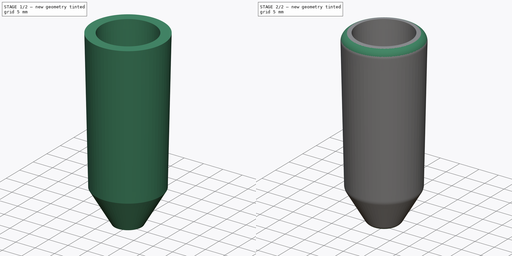
[diagram: build sequence overview — one tinted view per stage of 2, left to right]
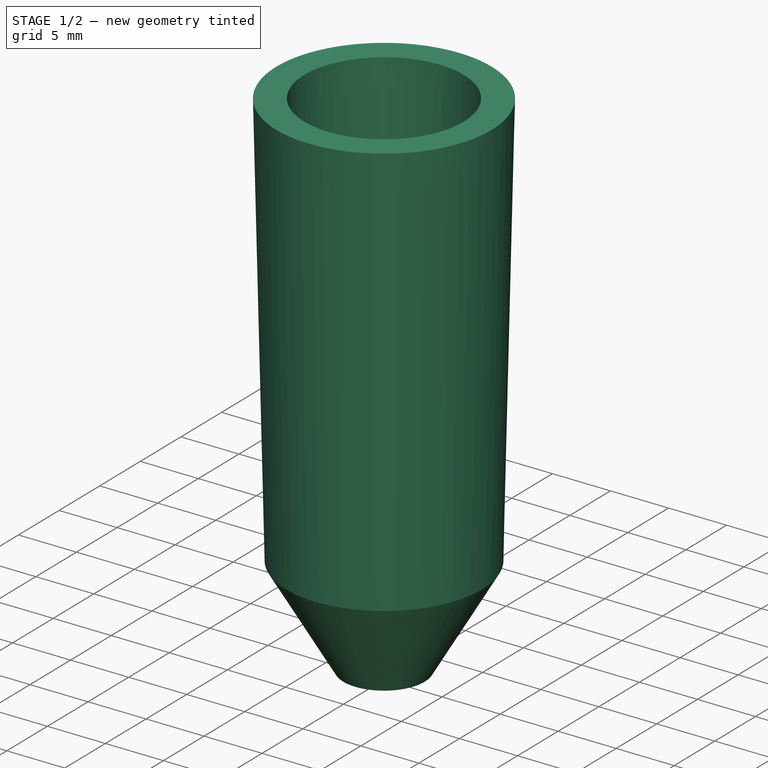
[diagram: stage 1 of 2 — iso view after this stage's code; geometry added in this stage tinted green]
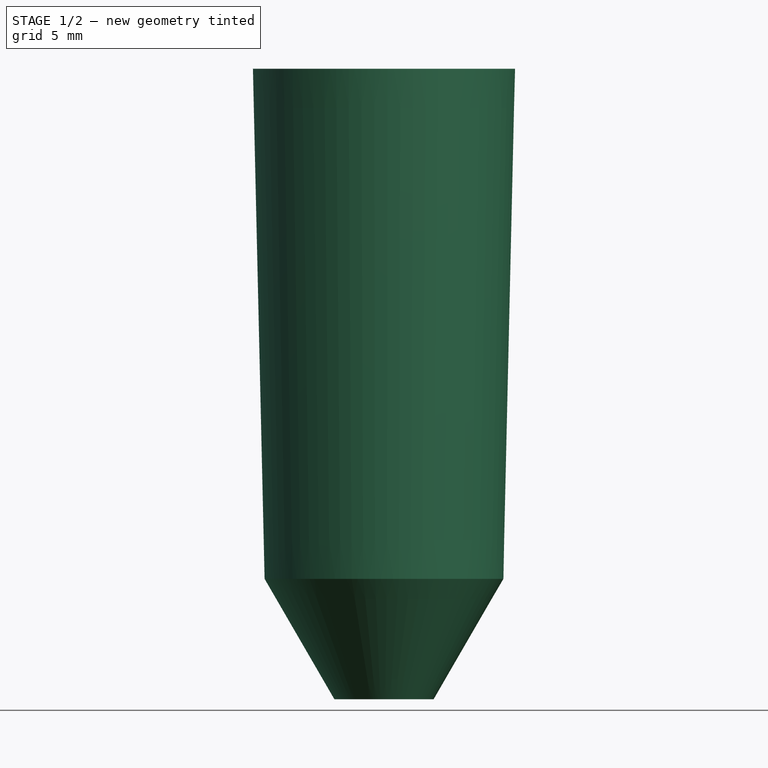
[diagram: stage 1 of 2 — front view after this stage's code; geometry added in this stage tinted green]
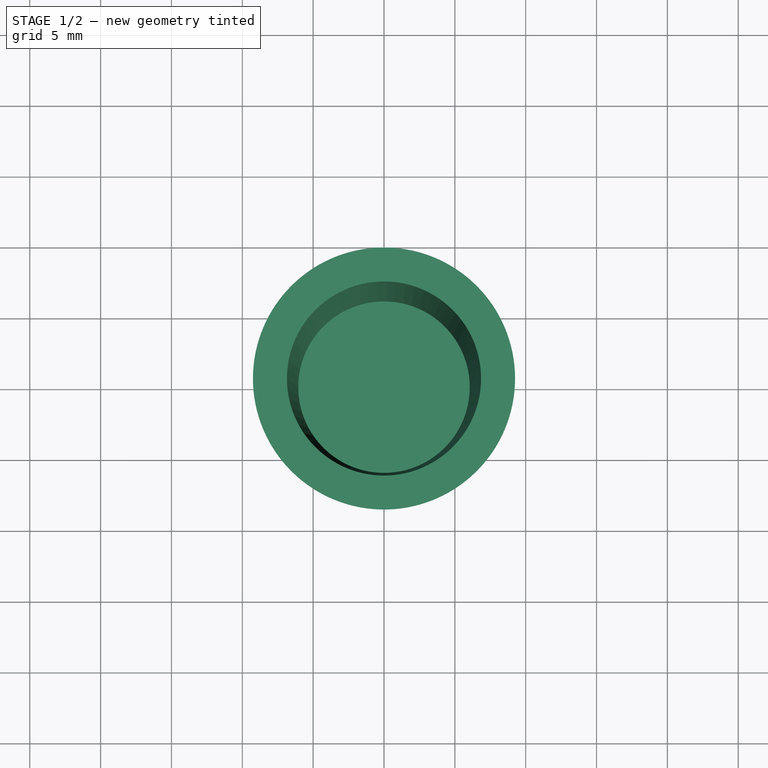
[diagram: stage 1 of 2 — top view after this stage's code; geometry added in this stage tinted green]
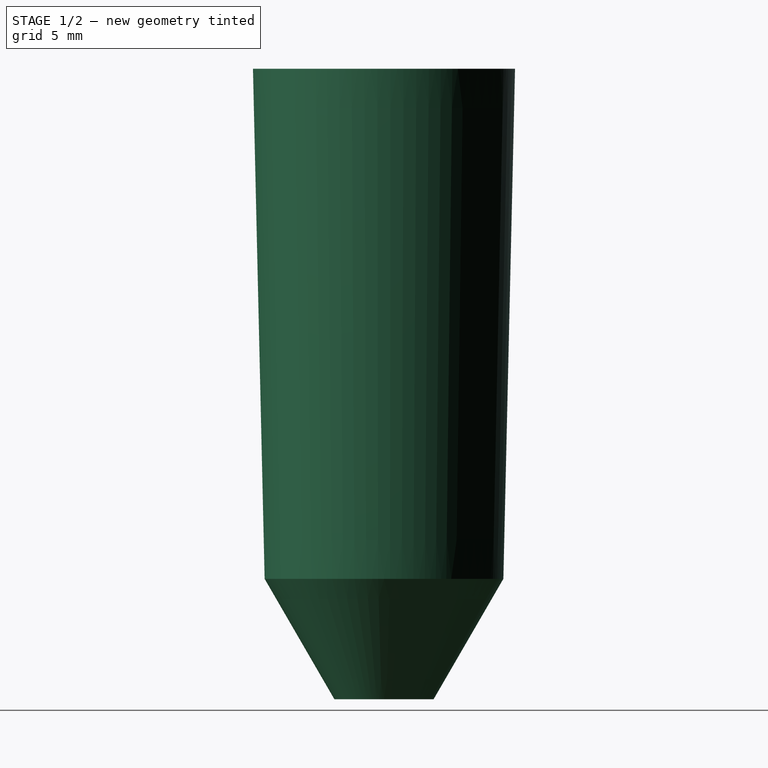
[diagram: stage 1 of 2 — right view after this stage's code; geometry added in this stage tinted green]
FCSTD DOCUMENT  (FreeCAD 0.16R)
Label: UmbrellaProtector
License: All rights reserved
LicenseURL: http://en.wikipedia.org/wiki/All_rights_reserved
objects: Sketcher::SketchObject×1, PartDesign::Revolution×1, PartDesign::Fillet×1
note: 4 computed .brp shape members not serialized (recipe doc carries the construction recipe); baked Part::Feature solids carry a one-line shape summary decoded from their .brp

FEATURE [Sketcher::SketchObject] Sketch
  Placement = pos=(0,0,0) rot=(1,0,0;1.5708rad)
  sketch-geometry (8):
    g0: LineSegment StartX=0 StartY=0 StartZ=0 EndX=-6.05 EndY=0 EndZ=0
    g1: LineSegment StartX=-6.05 StartY=0 StartZ=0 EndX=-6.85 EndY=35 EndZ=0
    g2: LineSegment StartX=-6.85 StartY=35 StartZ=0 EndX=-9.25 EndY=35 EndZ=0
    g3: LineSegment StartX=-9.25 StartY=35 StartZ=0 EndX=-8.42714 EndY=-1 EndZ=0
    g4: LineSegment StartX=-8.42714 StartY=-1 StartZ=0 EndX=-3.5 EndY=-9.5 EndZ=0
    g5: LineSegment StartX=-3.5 StartY=-9.5 StartZ=0 EndX=0 EndY=-9.5 EndZ=0
    g6: LineSegment StartX=0 StartY=-9.5 StartZ=0 EndX=0 EndY=0 EndZ=0
    g7: LineSegment [constr] StartX=-6.85 StartY=35 StartZ=0 EndX=0 EndY=35 EndZ=0
  constraints (23):
    c: Coincident(g-1,g0)
    c: Horizontal(g0)
    c: Coincident(g0,g1)
    c: Coincident(g1,g2)
    c: Coincident(g2,g3)
    c: Coincident(g3,g4)
    c: Coincident(g4,g5)
    c: PointOnObject(g5,g-2)
    c: Horizontal(g5)
    c: Coincident(g5,g6)
    c: Coincident(g6,g0)
    c: DistanceX(g0,g0) = 6.05
    c: Coincident(g7,g1)
    c: Horizontal(g7)
    c: PointOnObject(g7,g-2)
    c: DistanceX(g7,g7) = 6.85
    c: DistanceY(g-1,g7) = 35
    c: Horizontal(g2)
    c: DistanceX(g2,g2) = 2.4
    c: Parallel(g1,g3)
    c: DistanceX(g5,g5) = 3.5
    c: DistanceY(g6,g6) = 9.5
    c: DistanceY(g3,g0) = 1
FEATURE [PartDesign::Revolution] Revolution
  Angle = 360
  Axis = (0,0,1)
  Base = (0,0,0)
  Placement = pos=(0,0,0) rot=(1,0,0;1.5708rad)
  ReferenceAxis = -> Sketch [V_Axis]
  Sketch = -> Sketch
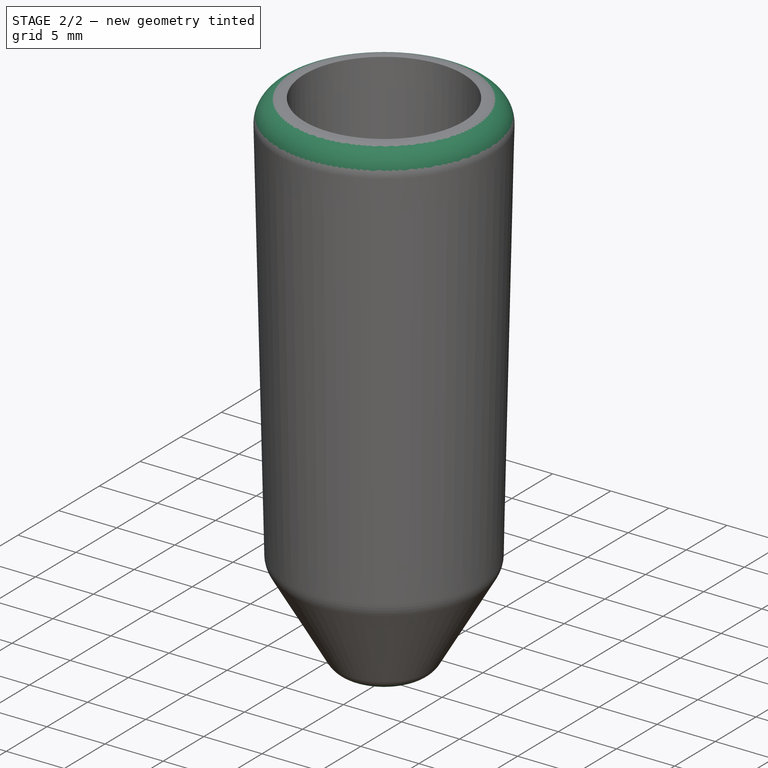
[diagram: stage 2 of 2 — iso view after this stage's code; geometry added in this stage tinted green]
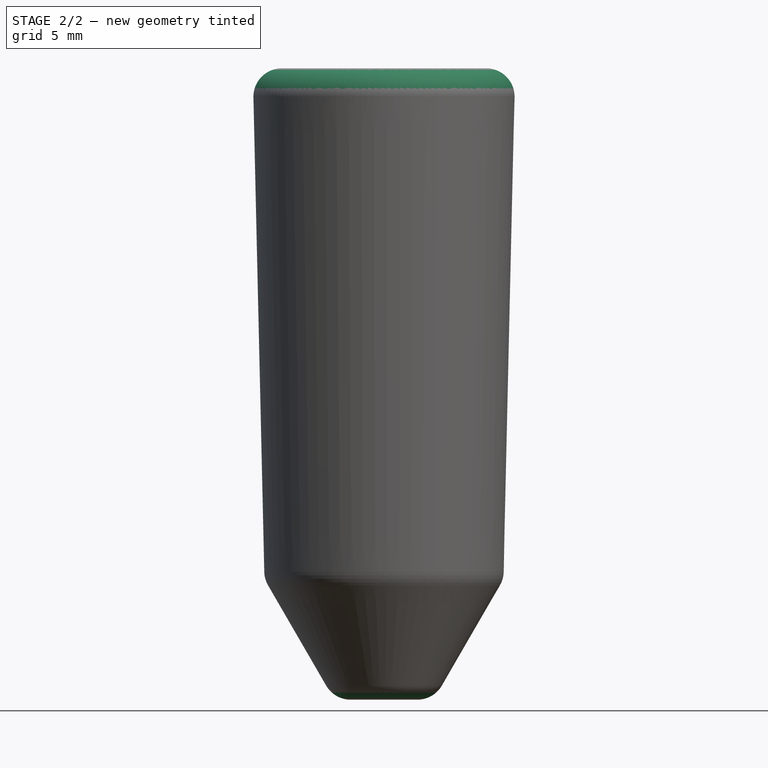
[diagram: stage 2 of 2 — front view after this stage's code; geometry added in this stage tinted green]
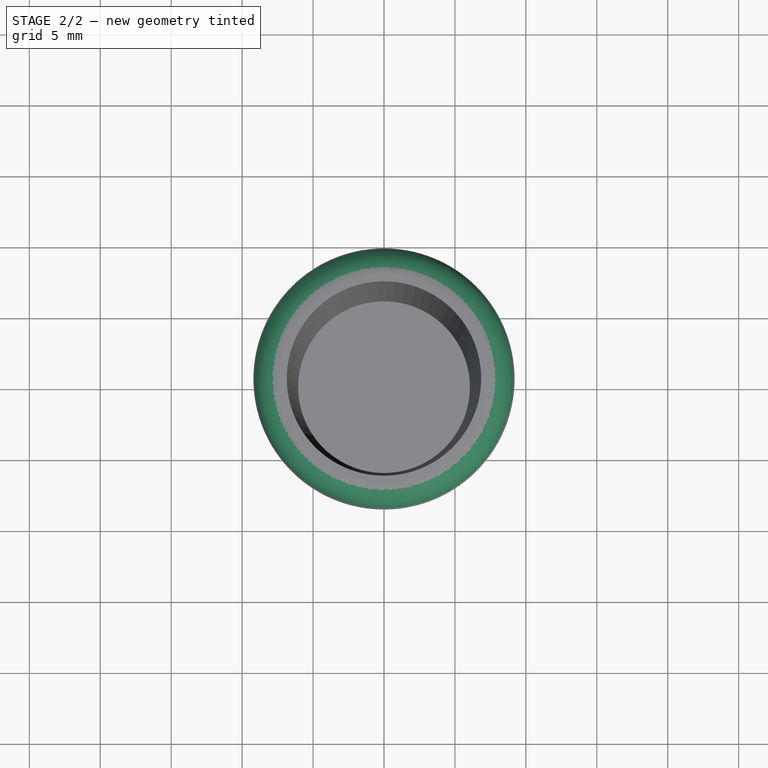
[diagram: stage 2 of 2 — top view after this stage's code; geometry added in this stage tinted green]
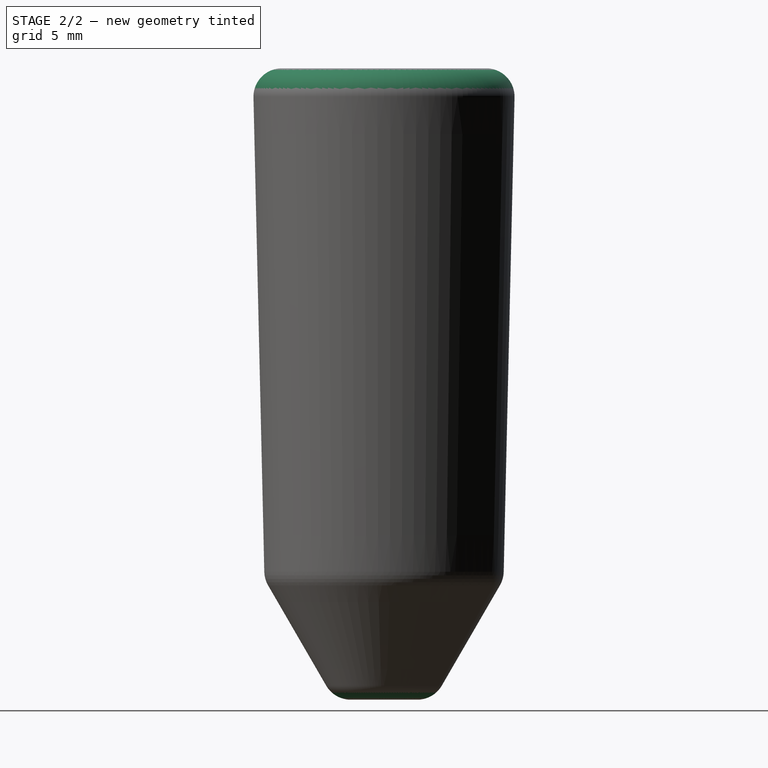
[diagram: stage 2 of 2 — right view after this stage's code; geometry added in this stage tinted green]
FEATURE [PartDesign::Fillet] Fillet
  Base = -> Revolution [Edge4,Edge5,Edge7]
  Placement = pos=(0,0,0) rot=(1,0,0;1.5708rad)
  Radius = 2
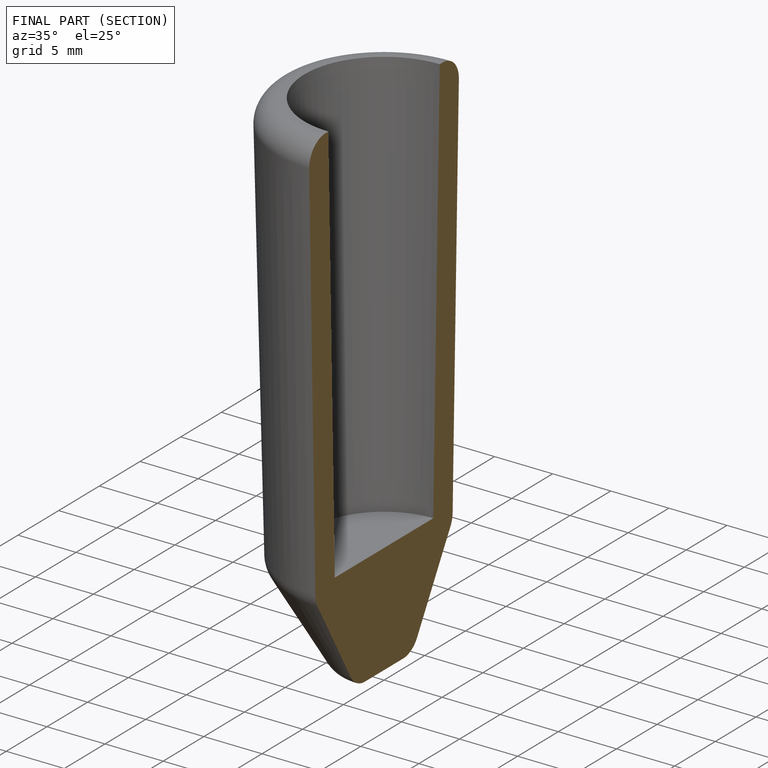
[diagram: finished part — half-section view (interior)]
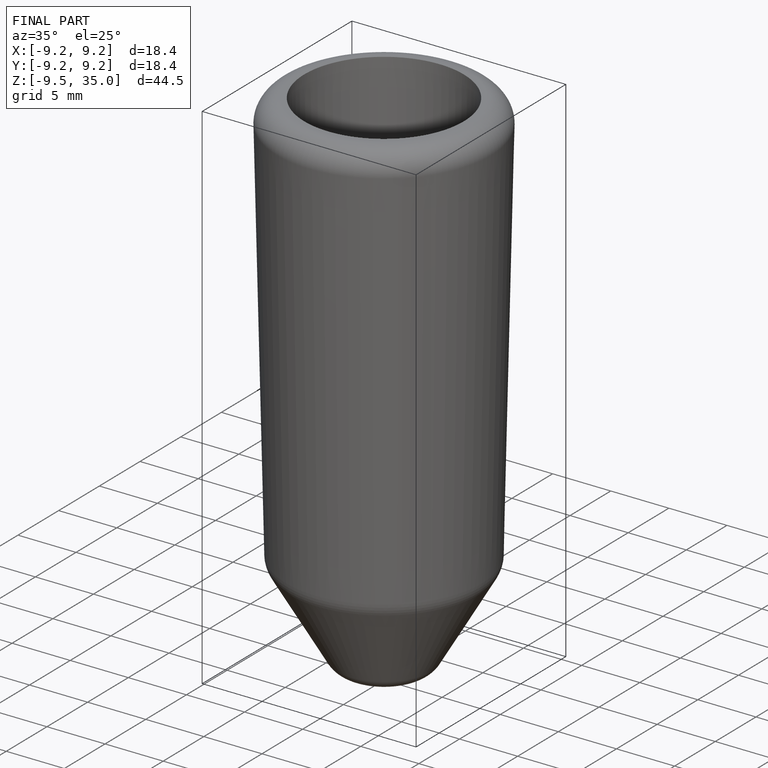
[diagram: finished part — iso view with bounding-box wireframe]
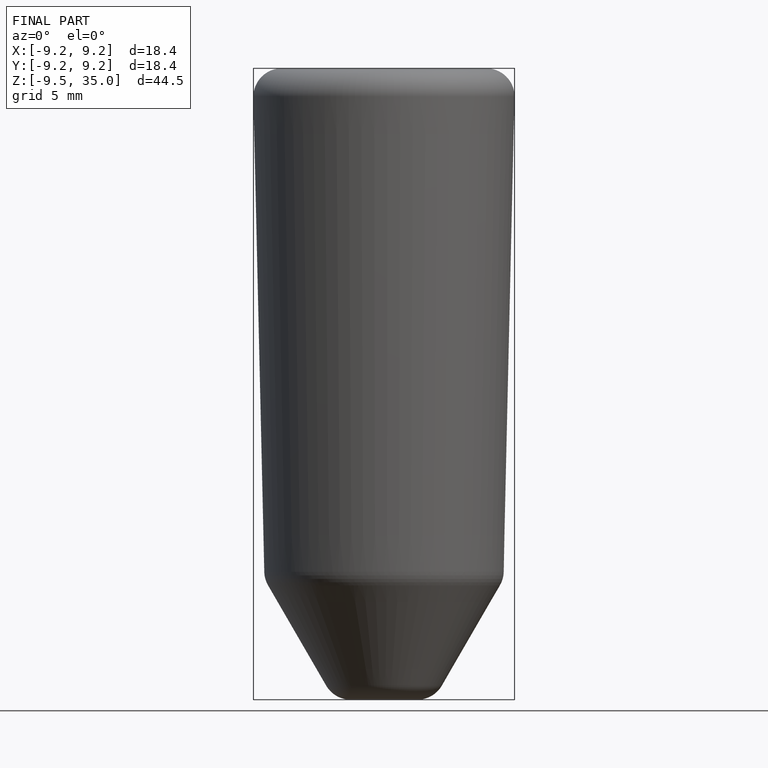
[diagram: finished part — front view with bounding-box wireframe]
